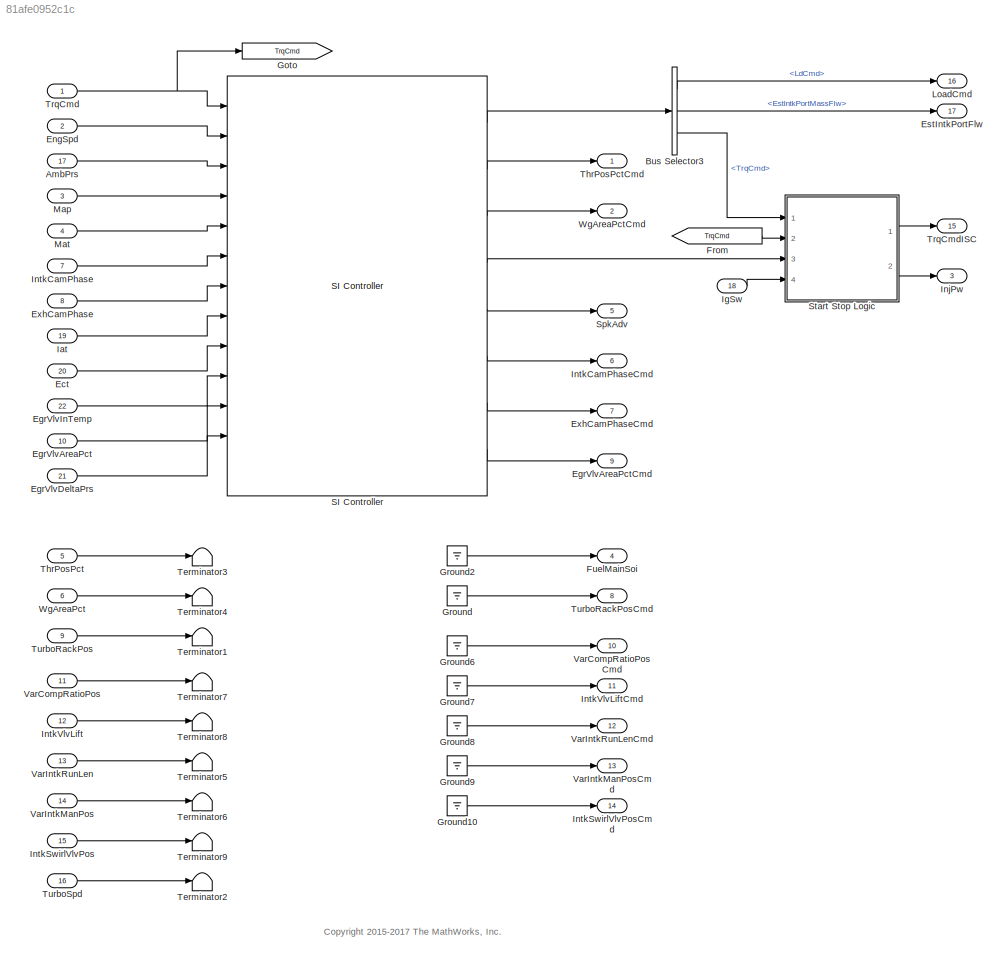
MODEL slx_81afe0952c1c
KIND model
CONFIG AbsTol = auto
CONFIG EnableMultiTasking = on
CONFIG FixedStep = .01
CONFIG MaxStep = auto
CONFIG MinStep = auto
CONFIG RelTol = 1e-3
CONFIG SampleTimeConstraint = Unconstrained
CONFIG SolverName = ode4
CONFIG StartTime = 0.0
CONFIG StopTime = inf
WORKSPACE source: mxarray member
WORKSPACE AFRStoich = 14.6
WORKSPACE AirIdealGasCnst = 287
WORKSPACE AirMassFlowCorrEngLdBpt = [0.223381333333 0.285105122807 0.346828912281 0.408552701754 0.470276491228 0.532000280702 0.593724070175 0.655447859649 0.717171649123 0.778895438596 0.84061922807 0.902343017544 ... (20 elements, 1x20)]
WORKSPACE AirMassFlwCorrEngSpdBpt = [750 973.6842 1197.3684 1421.0526 1644.7368 1868.4211 2092.1053 2315.7895 2539.4737 2763.1579 2986.8421 3210.5263 ... (20 elements, 1x20)]
WORKSPACE AirMassFlwCorrTbl = [1.02156051768 1.00597426471 0.989411677851 1.0033499089 0.984591437857 0.988509040623 1.0326198627 1.02765527362 1.0134784519 0.998280021213 0.981755128787 0.967218261288 ... (400 elements, 20x20)]
WORKSPACE CatLightOffTime = 0
WORKSPACE Cps = 2
WORKSPACE CylTrpdMassCorr = [0.839360054391 0.833393271885 0.82629554201 0.818442814437 0.811524387436 0.809164184856 0.814606352881 0.826887956871 0.842304598924 0.856886829014 0.869487025783 0.880530414174 ... (400 elements, 20x20)]
WORKSPACE DesiredIdleSpeed = 750
WORKSPACE ECP_Table = [0 0 7.19012817097 15.3709456879 19.1470470057 19.0854874367 13.5819971805 0 0 0 0 0 ... (240 elements, 16x15)]
WORKSPACE EngSpdBpt = [750 973.6842 1197.3684 1421.0526 1644.7368 1868.4211 2092.1053 2315.7895 2539.4737 2763.1579 2986.8421 3210.5263 ... (20 elements, 1x20)]
WORKSPACE EngStopStartEnable = 1
WORKSPACE EngStopTime: Simulink.Parameter (value not decoded)
WORKSPACE ExhCamPhaseBpt = [0 2.6316 5.2632 7.8947 10.5263 13.1579 15.7895 18.4211 21.0526 23.6842 26.3158 28.9474 ... (20 elements, 1x20)]
WORKSPACE ExhGasTmpLdBpt = [0.2 0.275 0.35 0.425 0.5 0.575 0.65 0.725 0.8 0.875 0.95 1.025 ... (15 elements, 1x15)]
WORKSPACE ExhGasTmpSpdBpt = [750 1053.57142857 1357.14285714 1660.71428571 1964.28571429 2267.85714286 2571.42857143 2875 3178.57142857 3482.14285714 3785.71428571 4089.28571429 ... (15 elements, 1x15)]
WORKSPACE ExhGasTmpTbl = [739.936218766 750.584766028 772.770773797 791.235245621 803.106549716 885.862998064 920.498479307 920.498479307 920.498479307 920.498479307 920.498479307 920.498479307 ... (225 elements, 15x15)]
WORKSPACE FricTrqTbl = [4.16 4.42 4.69 4.88 4.94 4.93 4.85 4.74 4.63 4.52 4.42 4.34 ... (225 elements, 15x15)]
WORKSPACE ICP_Table = [0 0 1 1.09273642197 2.29409401139 3.54274371837 0.947749647567 0 0 0 0 0 ... (240 elements, 16x15)]
WORKSPACE InjSlp = 6.45161290323
WORKSPACE InrTrqEngSpdBpt = [750 1053.5714 1357.1429 1660.7143 1964.2857 2267.8571 2571.4286 2875 3178.5714 3482.1429 3785.7143 4089.2857 ... (15 elements, 1x15)]
WORKSPACE InrTrqLdBpt = [0.2 0.28571 0.37143 0.45714 0.54286 0.62857 0.71429 0.8 0.88571 0.97143 1.0571 1.1429 ... (15 elements, 1x15)]
WORKSPACE InrTrqTbl = [25.8508 37.8267 50.6081 62.6825 74.6026 88.9064 81.9508 76.6399 82.9886 85.0042 88.9209 92.7645 ... (225 elements, 15x15)]
WORKSPACE IntkCamPhaseBpt = [0 2.6316 5.2632 7.8947 10.5263 13.1579 15.7895 18.4211 21.0526 23.6842 26.3158 28.9474 ... (20 elements, 1x20)]
WORKSPACE IntkMassFlw = [0 0 0 0 0 0 0 0 0 0 0 0 ... (400 elements, 20x20)]
WORKSPACE IntkVlvClsdCylVol = [0.37716 0.38164 0.38611 0.39033 0.39428 0.39795 0.40132 0.40441 0.40719 0.40967 0.41184 0.41372 ... (20 elements, 1x20)]
WORKSPACE LAM_Table = [1 1 1 1 1 1 1 1 1 1 1 1 ... (240 elements, 16x15)]
WORKSPACE LOAD_Table = [0 0.337451044653 0.414402108642 0.494486992817 0.575342588384 0.624156549101 0.624156549101 0.624156549101 0.624156549101 0.624156549101 0.624156549101 0.624156549101 ... (240 elements, 16x15)]
WORKSPACE LamEffLamBp = [0.65 0.7 0.75 0.8 0.85 0.9 0.95 1 1.05 1.1]
WORKSPACE LamEffTbl = [0.94128 0.95565 0.97001 0.98437 0.99008 1.0004 0.97527 0.9549 0.92612 0.89735]
WORKSPACE Load_bp = [0 0.2 0.275 0.35 0.425 0.5 0.575 0.65 0.725 0.8 0.875 0.95 ... (16 elements, 1x16)]
WORKSPACE NCyl = 4
WORKSPACE NrmlzdDenBpt = [0.3 0.38947 0.47895 0.56842 0.65789 0.74737 0.83684 0.92632 1.0158 1.1053 1.1947 1.2842 ... (20 elements, 1x20)]
WORKSPACE Pstd = 101325
WORKSPACE PumpTrqTbl = [7.24 5.67 3.94 2.59 1.8 1 1 1 1 1 1 1 ... (225 elements, 15x15)]
WORKSPACE SA_Table = [9.05 9.05 16.4373253582 15.3405265461 13.6074880273 9.83352189562 3.89388784387 0 0 0 0 0 ... (240 elements, 16x15)]
WORKSPACE SAoptTbl = [35.3085 21.0105 10.3714 8.5076 7.1426 7.5656 -5.7766 -16.7061 -16.8345 -19.3546 -20.6085 -22.0872 ... (225 elements, 15x15)]
WORKSPACE Speed_bp = [750 1053.57142857 1357.14285714 1660.71428571 1964.28571429 2267.85714286 2571.42857143 2875 3178.57142857 3482.14285714 3785.71428571 4089.28571429 ... (15 elements, 1x15)]
WORKSPACE SpkTrqEffDlt = [0 0.75 1.5 2.25 3 3.75 4.5 5.25 6 6.75 7.5 8.25 ... (65 elements, 1x65)]
WORKSPACE SpkTrqEffTbl = [1.0019 0.9988 0.9953 0.99173 0.98811 0.98441 0.98065 0.97682 0.97293 0.96897 0.96493 0.96083 ... (65 elements, 1x65)]
WORKSPACE TAP2TPP_Table = [0 100]
WORKSPACE TAP2TPP_bp = [0 100]
WORKSPACE TAP_Table = [0 0.788736979167 0.788736979167 1.02768195697 1.31310759821 1.71307811728 2.2936923368 2.83561197917 2.83561197917 2.83561197917 2.83561197917 2.83561197917 ... (240 elements, 16x15)]
WORKSPACE Torque_bp = [0 15 26.4285714286 37.8571428571 49.2857142857 60.7142857143 72.1428571429 83.5714285714 95 106.428571429 117.857142857 129.285714286 ... (16 elements, 1x16)]
WORKSPACE TrpdMassFlwBpt = [0 5.7895 11.5789 17.3684 23.1579 28.9474 34.7368 40.5263 46.3158 52.1053 57.8947 63.6842 ... (20 elements, 1x20)]
WORKSPACE TrqLdSpdTbl = [15.0012133443 26.4298333923 37.8556656512 49.2846782956 60.7113978793 72.3451969202 77.459652163 78.5324534074 78.5324534074 78.5324534074 78.5324534074 78.5324534074 ... (225 elements, 15x15)]
WORKSPACE TrqLdSpdTblLdBpt = [0.2 0.275 0.35 0.425 0.5 0.575 0.65 0.725 0.8 0.875 0.95 1.025 ... (15 elements, 1x15)]
WORKSPACE TrqLdSpdTblSpdBpt = [750 1053.57142857 1357.14285714 1660.71428571 1964.28571429 2267.85714286 2571.42857143 2875 3178.57142857 3482.14285714 3785.71428571 4089.28571429 ... (15 elements, 1x15)]
WORKSPACE Ts: Simulink.Parameter (value not decoded)
WORKSPACE Tstd = 293.15
WORKSPACE Vd = 0.0015
WORKSPACE VolEffEngSpdBpt = [750 1053.57142857 1357.14285714 1660.71428571 1964.28571429 2267.85714286 2571.42857143 2875 3178.57142857 3482.14285714 3785.71428571 4089.28571429 ... (15 elements, 1x15)]
WORKSPACE VolEffMapBpt = [31 40.6428571429 50.2857142857 59.9285714286 69.5714285714 79.2142857143 88.8571428571 98.5 108.142857143 117.785714286 127.428571429 137.071428571 ... (15 elements, 1x15)]
WORKSPACE VolEffTbl = [0.64175366561 0.641419295169 0.640125365558 0.638690556197 0.644169906538 0.669178791311 0.731659452876 0.750078238889 0.750078238889 0.750078238889 0.750078238889 0.750078238889 ... (225 elements, 15x15)]
WORKSPACE WAP_Table = [100 100 100 100 100 100 100 100 100 100 100 100 ... (240 elements, 16x15)]
WORKSPACE f_egr_areapct_cmd = [0 3.448 6.897 10.34 13.79 17.24 20.69 24.14 27.59 31.03 34.48 37.93 ... (600 elements, 30x20)]
WORKSPACE f_egr_areapct_nrmlzdflow_bpt = [0 0.03448 0.06897 0.1034 0.1379 0.1724 0.2069 0.2414 0.2759 0.3103 0.3448 0.3793 ... (30 elements, 1x30)]
WORKSPACE f_egr_areapct_pr_bpt = [0.5 0.5263 0.5526 0.5789 0.6053 0.6316 0.6579 0.6842 0.7105 0.7368 0.7632 0.7895 ... (20 elements, 20x1)]
WORKSPACE f_egr_max_stdflow = [74.87 74.87 74.74 74.39 73.81 72.98 71.91 70.58 68.97 67.06 64.84 62.25 ... (20 elements, 1x20)]
WORKSPACE f_egr_stdflow = [0 3.743 7.487 11.23 14.97 18.72 22.46 26.2 29.95 33.69 37.43 41.18 ... (420 elements, 21x20)]
WORKSPACE f_egr_stdflow_egrap_bpt = [0 5 10 15 20 25 30 35 40 45 50 55 ... (21 elements, 21x1)]
WORKSPACE f_egr_stdflow_pr_bpt = [0.5 0.5263 0.5526 0.5789 0.6053 0.6316 0.6579 0.6842 0.7105 0.7368 0.7632 0.7895 ... (20 elements, 20x1)]
WORKSPACE f_egrpct_cmd = [0 0 0 0 0 0 0 0 0 0 0 0 ... (240 elements, 16x15)]
WORKSPACE f_egrpct_ld_bpt = [0 0.2 0.275 0.35 0.425 0.5 0.575 0.65 0.725 0.8 0.875 0.95 ... (16 elements, 1x16)]
WORKSPACE f_egrpct_n_bpt = [750 1054 1357 1661 1964 2268 2571 2875 3179 3482 3786 4089 ... (15 elements, 1x15)]
WORKSPACE f_fric_temp_bpt = [275 277 279 281 283 285 287 289 291 293 295 297 ... (46 elements, 1x46)]
WORKSPACE f_fric_temp_mod = [3.986 2.616 2.132 1.946 1.839 1.747 1.672 1.608 1.551 1.499 1.462 1.415 ... (46 elements, 1x46)]
WORKSPACE f_intksys_stdflow_bpt = [0 29.67 59.34 89.01 117.8 144.1 155.7 166 175.2 183.3 190.7 197 ... (20 elements, 1x20)]
WORKSPACE f_intksys_stdflow_pr = [1 0.9789 0.9579 0.9368 0.9158 0.8947 0.8737 0.8526 0.8316 0.8105 0.7895 0.7684 ... (20 elements, 1x20)]
WORKSPACE tau_egr = 0.2
BLOCK [Inport] AmbPrs
  Port = 17
BLOCK [BusSelector] Bus Selector3
  OutputSignals = LdCmd,EstIntkPortMassFlw,TrqCmd
  Ports = [1, 3]
BLOCK [Inport] Ect
  Port = 20
  Unit = K
BLOCK [Inport] EgrVlvAreaPct
  Port = 10
  Unit = %
BLOCK [Outport] EgrVlvAreaPctCmd
  Port = 9
  Unit = %
  VectorParamsAs1DForOutWhenUnconnected = off
BLOCK [Inport] EgrVlvDeltaPrs
  Port = 21
  Unit = Pa
BLOCK [Inport] EgrVlvInTemp
  Port = 22
  Unit = K
BLOCK [Inport] EngSpd
  Port = 2
BLOCK [Outport] EstIntkPortFlw
  Port = 17
  VectorParamsAs1DForOutWhenUnconnected = off
BLOCK [Inport] ExhCamPhase
  Port = 8
BLOCK [Outport] ExhCamPhaseCmd
  Port = 7
  VectorParamsAs1DForOutWhenUnconnected = off
BLOCK [From] From
  GotoTag = TrqCmd
BLOCK [Outport] FuelMainSoi
  Port = 4
  Unit = deg
  VectorParamsAs1DForOutWhenUnconnected = off
BLOCK [Goto] Goto
  GotoTag = TrqCmd
BLOCK [Ground] Ground
BLOCK [Ground] Ground10
BLOCK [Ground] Ground2
BLOCK [Ground] Ground6
BLOCK [Ground] Ground7
BLOCK [Ground] Ground8
BLOCK [Ground] Ground9
BLOCK [Inport] Iat
  Port = 19
  Unit = K
BLOCK [Inport] IgSw
  Port = 18
BLOCK [Outport] InjPw
  Port = 3
  Unit = ms
  VectorParamsAs1DForOutWhenUnconnected = off
BLOCK [Inport] IntkCamPhase
  Port = 7
BLOCK [Outport] IntkCamPhaseCmd
  Port = 6
  VectorParamsAs1DForOutWhenUnconnected = off
BLOCK [Inport] IntkSwirlVlvPos
  Port = 15
BLOCK [Outport] IntkSwirlVlvPosCmd
  Port = 14
  VectorParamsAs1DForOutWhenUnconnected = off
BLOCK [Inport] IntkVlvLift
  Port = 12
BLOCK [Outport] IntkVlvLiftCmd
  Port = 11
  VectorParamsAs1DForOutWhenUnconnected = off
BLOCK [Outport] LoadCmd
  Port = 16
  VectorParamsAs1DForOutWhenUnconnected = off
BLOCK [Inport] Map
  Port = 3
BLOCK [Inport] Mat
  Port = 4
BLOCK [Reference] SI Controller  REF=autolibengctrlr/SI Controller
  Ports = [13, 8]
  SourceBlock = autolibengctrlr/SI Controller
  SourceProductName = Powertrain Blockset
  SourceType = SI Controller
BLOCK [Outport] SpkAdv
  Port = 5
  VectorParamsAs1DForOutWhenUnconnected = off
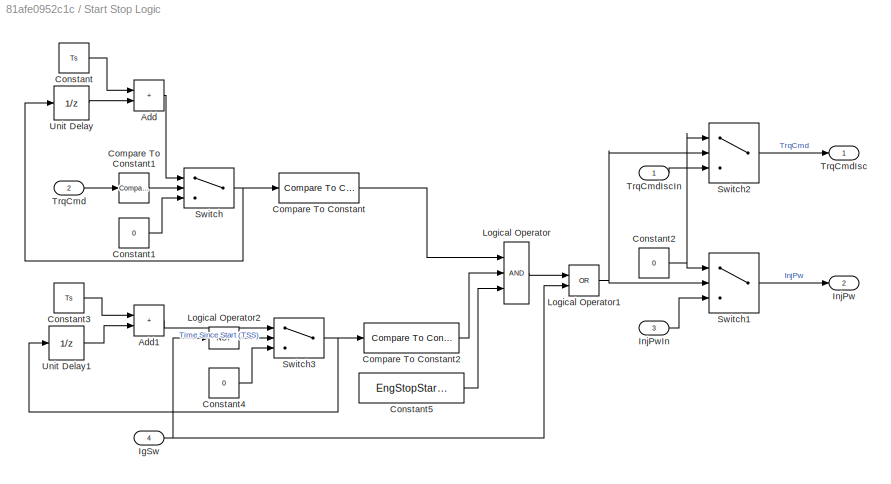
BLOCK [SubSystem] Start Stop Logic
  Ports = [4, 2]
  RequestExecContextInheritance = off
  TreatAsAtomicUnit = on
BLOCK [Sum] Start Stop Logic/Add
  IconShape = rectangular
  Ports = [2, 1]
BLOCK [Sum] Start Stop Logic/Add1
  IconShape = rectangular
  Ports = [2, 1]
BLOCK [Reference] Start Stop Logic/Compare To Constant  REF=simulink/Logic and Bit
Operations/Compare
To Constant
  Ports = [1, 1]
  SourceBlock = simulink/Logic and Bit\nOperations/Compare\nTo Constant
  SourceProductBaseCode = SL
  SourceType = Compare To Constant
BLOCK [Reference] Start Stop Logic/Compare To Constant1  REF=simulink/Logic and Bit
Operations/Compare
To Constant
  Ports = [1, 1]
  SourceBlock = simulink/Logic and Bit\nOperations/Compare\nTo Constant
  SourceProductBaseCode = SL
  SourceType = Compare To Constant
BLOCK [Reference] Start Stop Logic/Compare To Constant2  REF=simulink/Logic and Bit
Operations/Compare
To Constant
  Ports = [1, 1]
  SourceBlock = simulink/Logic and Bit\nOperations/Compare\nTo Constant
  SourceProductBaseCode = SL
  SourceType = Compare To Constant
BLOCK [Constant] Start Stop Logic/Constant
  Value = Ts
BLOCK [Constant] Start Stop Logic/Constant1
  Value = 0
BLOCK [Constant] Start Stop Logic/Constant2
  Value = 0
BLOCK [Constant] Start Stop Logic/Constant3
  Value = Ts
BLOCK [Constant] Start Stop Logic/Constant4
  Value = 0
BLOCK [Constant] Start Stop Logic/Constant5
  Value = EngStopStartEnable
BLOCK [Inport] Start Stop Logic/IgSw
  Port = 4
BLOCK [Outport] Start Stop Logic/InjPw
  Port = 2
  VectorParamsAs1DForOutWhenUnconnected = off
BLOCK [Inport] Start Stop Logic/InjPwIn
  Port = 3
BLOCK [Logic] Start Stop Logic/Logical Operator
  AllPortsSameDT = off
  Inputs = 3
  OutDataTypeStr = boolean
  Ports = [3, 1]
BLOCK [Logic] Start Stop Logic/Logical Operator1
  AllPortsSameDT = off
  Operator = OR
  OutDataTypeStr = boolean
  Ports = [2, 1]
BLOCK [Logic] Start Stop Logic/Logical Operator2
  AllPortsSameDT = off
  Operator = NOT
  OutDataTypeStr = boolean
  Ports = [1, 1]
BLOCK [Switch] Start Stop Logic/Switch
  Criteria = u2 ~= 0
  InputSameDT = off
  SaturateOnIntegerOverflow = off
BLOCK [Switch] Start Stop Logic/Switch1
  Criteria = u2 ~= 0
  InputSameDT = off
  SaturateOnIntegerOverflow = off
BLOCK [Switch] Start Stop Logic/Switch2
  Criteria = u2 ~= 0
  InputSameDT = off
  SaturateOnIntegerOverflow = off
BLOCK [Switch] Start Stop Logic/Switch3
  Criteria = u2 ~= 0
  InputSameDT = off
  SaturateOnIntegerOverflow = off
BLOCK [Inport] Start Stop Logic/TrqCmd
  Port = 2
BLOCK [Outport] Start Stop Logic/TrqCmdIsc
  VectorParamsAs1DForOutWhenUnconnected = off
BLOCK [Inport] Start Stop Logic/TrqCmdIscIn
BLOCK [UnitDelay] Start Stop Logic/Unit Delay
  HasFrameUpgradeWarning = on
  InitialCondition = EngStopTime+1
  SampleTime = -1
BLOCK [UnitDelay] Start Stop Logic/Unit Delay1
  HasFrameUpgradeWarning = on
  InitialCondition = EngStopTime+1
  SampleTime = -1
BLOCK [Terminator] Terminator1
BLOCK [Terminator] Terminator2
BLOCK [Terminator] Terminator3
BLOCK [Terminator] Terminator4
BLOCK [Terminator] Terminator5
BLOCK [Terminator] Terminator6
BLOCK [Terminator] Terminator7
BLOCK [Terminator] Terminator8
BLOCK [Terminator] Terminator9
BLOCK [Inport] ThrPosPct
  Port = 5
  Unit = %
BLOCK [Outport] ThrPosPctCmd
  VectorParamsAs1DForOutWhenUnconnected = off
BLOCK [Inport] TrqCmd
BLOCK [Outport] TrqCmdISC
  Port = 15
  Unit = N*m
  VectorParamsAs1DForOutWhenUnconnected = off
BLOCK [Inport] TurboRackPos
  Port = 9
  Unit = 1
BLOCK [Outport] TurboRackPosCmd
  Port = 8
  Unit = 1
  VectorParamsAs1DForOutWhenUnconnected = off
BLOCK [Inport] TurboSpd
  Port = 16
  Unit = rpm
BLOCK [Inport] VarCompRatioPos
  Port = 11
BLOCK [Outport] VarCompRatioPosCmd
  Port = 10
  VectorParamsAs1DForOutWhenUnconnected = off
BLOCK [Inport] VarIntkManPos
  Port = 14
BLOCK [Outport] VarIntkManPosCmd
  Port = 13
  VectorParamsAs1DForOutWhenUnconnected = off
BLOCK [Inport] VarIntkRunLen
  Port = 13
BLOCK [Outport] VarIntkRunLenCmd
  Port = 12
  VectorParamsAs1DForOutWhenUnconnected = off
BLOCK [Inport] WgAreaPct
  Port = 6
  Unit = %
BLOCK [Outport] WgAreaPctCmd
  Port = 2
  VectorParamsAs1DForOutWhenUnconnected = off
ANNOTATION (root): <copyright redacted>
LINE AmbPrs:1 -> SI Controller:3
LINE Bus Selector3:1 -> LoadCmd:1
LINE Bus Selector3:2 -> EstIntkPortFlw:1
LINE Bus Selector3:3 -> Start Stop Logic:1
LINE Ect:1 -> SI Controller:9
LINE EgrVlvAreaPct:1 -> SI Controller:11
LINE EgrVlvDeltaPrs:1 -> SI Controller:12
LINE EgrVlvInTemp:1 -> SI Controller:10
LINE EngSpd:1 -> SI Controller:2
LINE ExhCamPhase:1 -> SI Controller:7
LINE From:1 -> Start Stop Logic:2
LINE Ground10:1 -> IntkSwirlVlvPosCmd:1
LINE Ground2:1 -> FuelMainSoi:1
LINE Ground6:1 -> VarCompRatioPosCmd:1
LINE Ground7:1 -> IntkVlvLiftCmd:1
LINE Ground8:1 -> VarIntkRunLenCmd:1
LINE Ground9:1 -> VarIntkManPosCmd:1
LINE Ground:1 -> TurboRackPosCmd:1
LINE Iat:1 -> SI Controller:8
LINE IgSw:1 -> Start Stop Logic:4
LINE IntkCamPhase:1 -> SI Controller:6
LINE IntkSwirlVlvPos:1 -> Terminator9:1
LINE IntkVlvLift:1 -> Terminator8:1
LINE Map:1 -> SI Controller:4
LINE Mat:1 -> SI Controller:5
LINE SI Controller:1 -> Bus Selector3:1
LINE SI Controller:2 -> ThrPosPctCmd:1
LINE SI Controller:3 -> WgAreaPctCmd:1
LINE SI Controller:4 -> Start Stop Logic:3
LINE SI Controller:5 -> SpkAdv:1
LINE SI Controller:6 -> IntkCamPhaseCmd:1
LINE SI Controller:7 -> ExhCamPhaseCmd:1
LINE SI Controller:8 -> EgrVlvAreaPctCmd:1
LINE Start Stop Logic/Add1:1 -> Start Stop Logic/Switch3:1
LINE Start Stop Logic/Add:1 -> Start Stop Logic/Switch:1
LINE Start Stop Logic/Compare To Constant1:1 -> Start Stop Logic/Switch:2
LINE Start Stop Logic/Compare To Constant2:1 -> Start Stop Logic/Logical Operator:2
LINE Start Stop Logic/Compare To Constant:1 -> Start Stop Logic/Logical Operator:1
LINE Start Stop Logic/Constant1:1 -> Start Stop Logic/Switch:3
NET Start Stop Logic/Constant2:1 -> Start Stop Logic/Switch1:1, Start Stop Logic/Switch2:1
LINE Start Stop Logic/Constant3:1 -> Start Stop Logic/Add1:1
LINE Start Stop Logic/Constant4:1 -> Start Stop Logic/Switch3:3
LINE Start Stop Logic/Constant5:1 -> Start Stop Logic/Logical Operator:3
LINE Start Stop Logic/Constant:1 -> Start Stop Logic/Add:1
NET Start Stop Logic/IgSw:1 -> Start Stop Logic/Logical Operator1:2, Start Stop Logic/Logical Operator2:1
LINE Start Stop Logic/InjPwIn:1 -> Start Stop Logic/Switch1:3
NET Start Stop Logic/Logical Operator1:1 -> Start Stop Logic/Switch1:2, Start Stop Logic/Switch2:2
LINE Start Stop Logic/Logical Operator2:1 -> Start Stop Logic/Switch3:2
LINE Start Stop Logic/Logical Operator:1 -> Start Stop Logic/Logical Operator1:1
LINE Start Stop Logic/Switch1:1 -> Start Stop Logic/InjPw:1
LINE Start Stop Logic/Switch2:1 -> Start Stop Logic/TrqCmdIsc:1
NET Start Stop Logic/Switch3:1 -> Start Stop Logic/Compare To Constant2:1, Start Stop Logic/Unit Delay1:1
NET Start Stop Logic/Switch:1 -> Start Stop Logic/Compare To Constant:1, Start Stop Logic/Unit Delay:1
LINE Start Stop Logic/TrqCmd:1 -> Start Stop Logic/Compare To Constant1:1
LINE Start Stop Logic/TrqCmdIscIn:1 -> Start Stop Logic/Switch2:3
LINE Start Stop Logic/Unit Delay1:1 -> Start Stop Logic/Add1:2
LINE Start Stop Logic/Unit Delay:1 -> Start Stop Logic/Add:2
LINE Start Stop Logic:1 -> TrqCmdISC:1
LINE Start Stop Logic:2 -> InjPw:1
LINE ThrPosPct:1 -> Terminator3:1
NET TrqCmd:1 -> Goto:1, SI Controller:1
LINE TurboRackPos:1 -> Terminator1:1
LINE TurboSpd:1 -> Terminator2:1
LINE VarCompRatioPos:1 -> Terminator7:1
LINE VarIntkManPos:1 -> Terminator6:1
LINE VarIntkRunLen:1 -> Terminator5:1
LINE WgAreaPct:1 -> Terminator4:1
note: NET lines group one-source signal fan-out (src -> all destinations, sorted); 1:1 wires keep LINE
